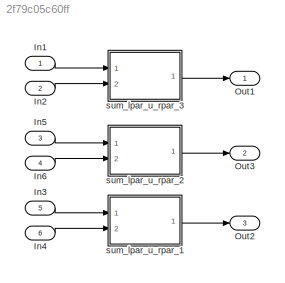
MODEL slx_2f79c05c60ff
KIND model
CONFIG AbsTol = auto
CONFIG EnableMultiTasking = off
CONFIG FixedStep = 0.100000
CONFIG MaxStep = auto
CONFIG MinStep = auto
CONFIG RelTol = 1e-3
CONFIG SampleTimeConstraint = Unconstrained
CONFIG SolverName = FixedStepDiscrete
CONFIG StartTime = 0.0
CONFIG StopTime = 10.0
WORKSPACE source: mxarray member
WORKSPACE already_pp = 1
BLOCK [Inport] In1
  PortDimensions = [1 1]
BLOCK [Inport] In2
  Port = 2
  PortDimensions = [3 2]
BLOCK [Inport] In3
  Port = 5
  PortDimensions = [3 2]
BLOCK [Inport] In4
  Port = 6
  PortDimensions = [2 3]
BLOCK [Inport] In5
  Port = 3
  PortDimensions = [1 3]
BLOCK [Inport] In6
  Port = 4
  PortDimensions = [3 2]
BLOCK [Outport] Out1
  VectorParamsAs1DForOutWhenUnconnected = off
BLOCK [Outport] Out2
  Port = 3
  VectorParamsAs1DForOutWhenUnconnected = off
BLOCK [Outport] Out3
  Port = 2
  VectorParamsAs1DForOutWhenUnconnected = off
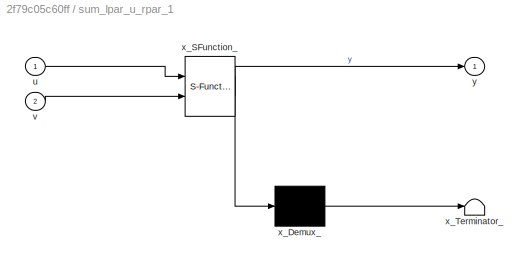
BLOCK [SubSystem] sum_lpar_u_rpar_1
  ErrorFcn = Stateflow.Translate.translate
  PermitHierarchicalResolution = ExplicitOnly
  Ports = [2, 1]
  RequestExecContextInheritance = off
  SFBlockType = MATLAB Function
  TreatAsAtomicUnit = on
BLOCK [Inport] sum_lpar_u_rpar_1/u
BLOCK [Inport] sum_lpar_u_rpar_1/v
  Port = 2
BLOCK [Demux] sum_lpar_u_rpar_1/x_Demux_
  Outputs = 1
  Ports = [1, 1]
BLOCK [S-Function] sum_lpar_u_rpar_1/x_SFunction_
  EnableBusSupport = on
  FunctionName = sf_sfun
  PortCounts = [2 2]
  Ports = [2, 2]
  SFcnIsStateOwnerBlock = off
  SFunctionDeploymentMode = off
  Tag = Stateflow S-Function 1
BLOCK [Terminator] sum_lpar_u_rpar_1/x_Terminator_
BLOCK [Outport] sum_lpar_u_rpar_1/y
  VectorParamsAs1DForOutWhenUnconnected = off
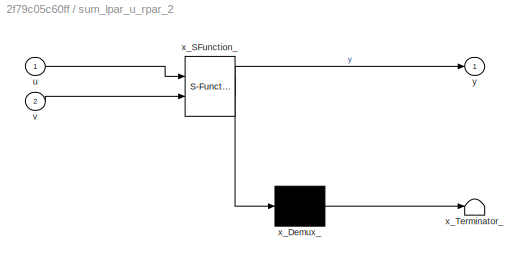
BLOCK [SubSystem] sum_lpar_u_rpar_2
  ErrorFcn = Stateflow.Translate.translate
  PermitHierarchicalResolution = ExplicitOnly
  Ports = [2, 1]
  RequestExecContextInheritance = off
  SFBlockType = MATLAB Function
  TreatAsAtomicUnit = on
BLOCK [Inport] sum_lpar_u_rpar_2/u
BLOCK [Inport] sum_lpar_u_rpar_2/v
  Port = 2
BLOCK [Demux] sum_lpar_u_rpar_2/x_Demux_
  Outputs = 1
  Ports = [1, 1]
BLOCK [S-Function] sum_lpar_u_rpar_2/x_SFunction_
  EnableBusSupport = on
  FunctionName = sf_sfun
  PortCounts = [2 2]
  Ports = [2, 2]
  SFcnIsStateOwnerBlock = off
  SFunctionDeploymentMode = off
  Tag = Stateflow S-Function 2
BLOCK [Terminator] sum_lpar_u_rpar_2/x_Terminator_
BLOCK [Outport] sum_lpar_u_rpar_2/y
  VectorParamsAs1DForOutWhenUnconnected = off
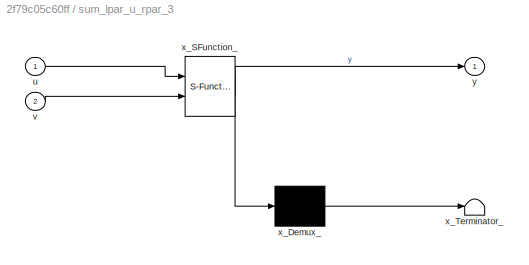
BLOCK [SubSystem] sum_lpar_u_rpar_3
  ErrorFcn = Stateflow.Translate.translate
  PermitHierarchicalResolution = ExplicitOnly
  Ports = [2, 1]
  RequestExecContextInheritance = off
  SFBlockType = MATLAB Function
  TreatAsAtomicUnit = on
BLOCK [Inport] sum_lpar_u_rpar_3/u
BLOCK [Inport] sum_lpar_u_rpar_3/v
  Port = 2
BLOCK [Demux] sum_lpar_u_rpar_3/x_Demux_
  Outputs = 1
  Ports = [1, 1]
BLOCK [S-Function] sum_lpar_u_rpar_3/x_SFunction_
  EnableBusSupport = on
  FunctionName = sf_sfun
  PortCounts = [2 2]
  Ports = [2, 2]
  SFcnIsStateOwnerBlock = off
  SFunctionDeploymentMode = off
  Tag = Stateflow S-Function 3
BLOCK [Terminator] sum_lpar_u_rpar_3/x_Terminator_
BLOCK [Outport] sum_lpar_u_rpar_3/y
  VectorParamsAs1DForOutWhenUnconnected = off
LINE In1:1 -> sum_lpar_u_rpar_3:1
LINE In2:1 -> sum_lpar_u_rpar_3:2
LINE In3:1 -> sum_lpar_u_rpar_1:1
LINE In4:1 -> sum_lpar_u_rpar_1:2
LINE In5:1 -> sum_lpar_u_rpar_2:1
LINE In6:1 -> sum_lpar_u_rpar_2:2
LINE sum_lpar_u_rpar_1:1 -> Out2:1
LINE sum_lpar_u_rpar_2:1 -> Out3:1
LINE sum_lpar_u_rpar_3:1 -> Out1:1
CHART sum_lpar_u_rpar_2 states=1 transitions=1
  STATE_LABEL 'eML_blk_kernel()'
  STATE_LABEL 'SCRIPT:\nfunction y = mtimes1(u, v)\n\ny = mtimes(u, v);\n'
CHART sum_lpar_u_rpar_3 states=1 transitions=1
  STATE_LABEL 'eML_blk_kernel()'
  STATE_LABEL 'SCRIPT:\nfunction y = mtimes1(u, v)\n\ny = mtimes(u, v);\n'
CHART sum_lpar_u_rpar_1 states=1 transitions=1
  STATE_LABEL 'eML_blk_kernel()'
  STATE_LABEL 'SCRIPT:\nfunction y = mtimes1(u, v)\n\ny = u * v;\n'
CHART  states=0 transitions=0
CHART  states=0 transitions=0
CHART  states=0 transitions=0
